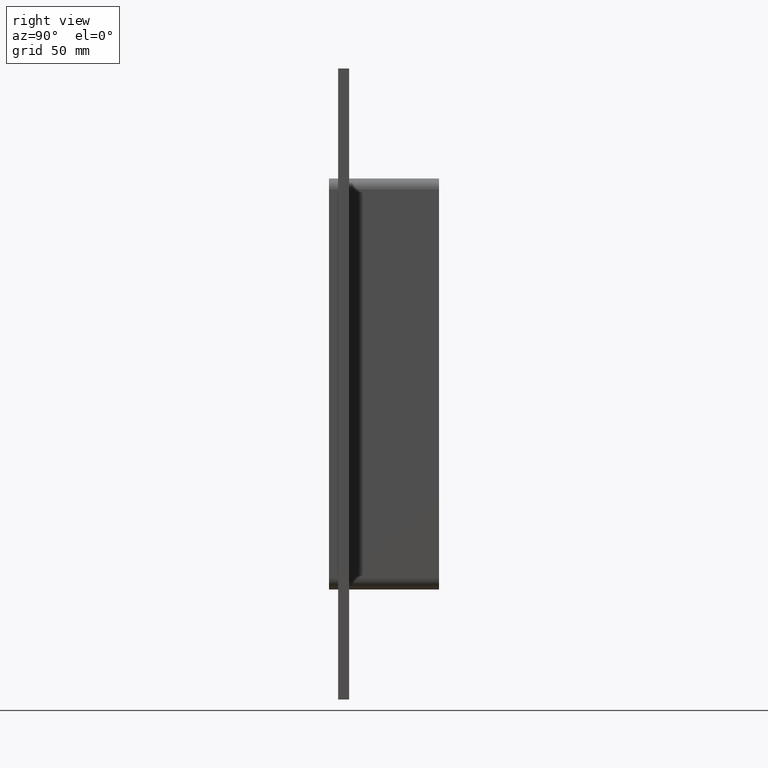
[diagram: clean part render]
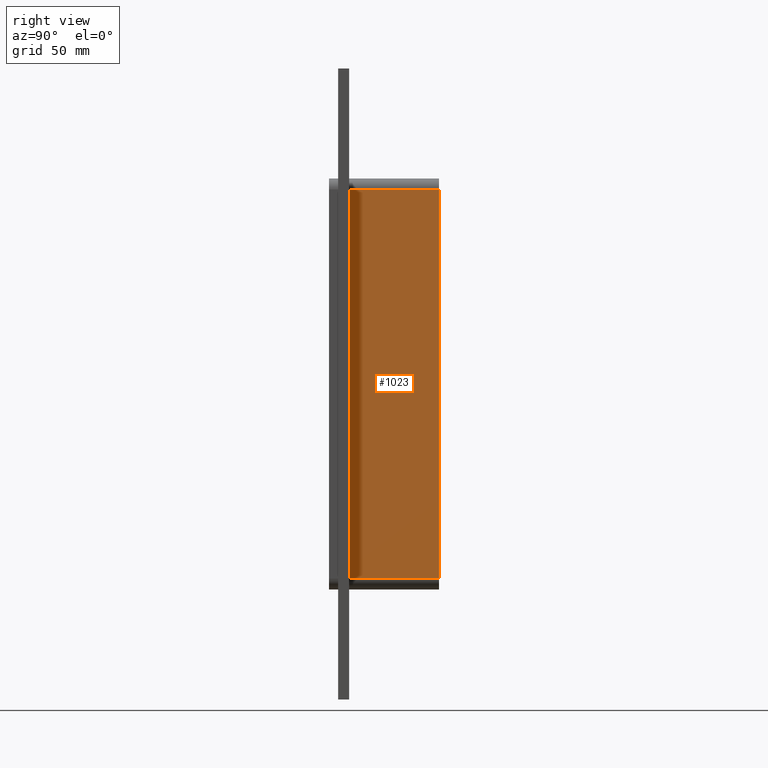
[diagram: same view with one face highlighted and labeled with its STEP entity id]
A machine part, right view. The second image highlights one B-rep face of the part: STEP entity #1023.
In plain terms, the highlighted planar face has unit normal (1, 0, 0).
Its self-contained STEP definition (entity closure, byte-faithful):
#282=CARTESIAN_POINT('',(36.25,6.000000000000001,106.00000000000001));
#283=VERTEX_POINT('',#282);
#333=CARTESIAN_POINT('',(36.25,6.000000000000001,-105.99999999999997));
#334=VERTEX_POINT('',#333);
#342=CARTESIAN_POINT('',(36.25,6.000000000000001,106.00000000000001));
#343=DIRECTION('',(0.0,0.0,-1.0));
#344=VECTOR('',#343,212.0);
#345=LINE('',#342,#344);
#346=EDGE_CURVE('',#283,#334,#345,.T.);
#939=CARTESIAN_POINT('',(36.25,55.0,106.00000000000001));
#940=VERTEX_POINT('',#939);
#941=CARTESIAN_POINT('',(36.25,55.0,106.00000000000001));
#942=DIRECTION('',(0.0,-1.0,0.0));
#943=VECTOR('',#942,49.0);
#944=LINE('',#941,#943);
#945=EDGE_CURVE('',#940,#283,#944,.T.);
#989=CARTESIAN_POINT('',(36.25,55.0,-105.99999999999997));
#990=VERTEX_POINT('',#989);
#998=CARTESIAN_POINT('',(36.25,6.000000000000001,-105.99999999999997));
#999=DIRECTION('',(0.0,1.0,0.0));
#1000=VECTOR('',#999,49.0);
#1001=LINE('',#998,#1000);
#1002=EDGE_CURVE('',#334,#990,#1001,.T.);
#1007=CARTESIAN_POINT('',(36.25,0.0,106.00000000000001));
#1008=DIRECTION('',(1.0,0.0,0.0));
#1009=DIRECTION('',(0.0,0.0,-1.0));
#1010=AXIS2_PLACEMENT_3D('',#1007,#1008,#1009);
#1011=PLANE('',#1010);
#1012=ORIENTED_EDGE('',*,*,#346,.T.);
#1013=ORIENTED_EDGE('',*,*,#1002,.T.);
#1014=CARTESIAN_POINT('',(36.25,55.0,106.00000000000001));
#1015=DIRECTION('',(0.0,0.0,-1.0));
#1016=VECTOR('',#1015,212.0);
#1017=LINE('',#1014,#1016);
#1018=EDGE_CURVE('',#940,#990,#1017,.T.);
#1019=ORIENTED_EDGE('',*,*,#1018,.F.);
#1020=ORIENTED_EDGE('',*,*,#945,.T.);
#1021=EDGE_LOOP('',(#1012,#1013,#1019,#1020));
#1022=FACE_OUTER_BOUND('',#1021,.T.);
#1023=ADVANCED_FACE('',(#1022),#1011,.T.);